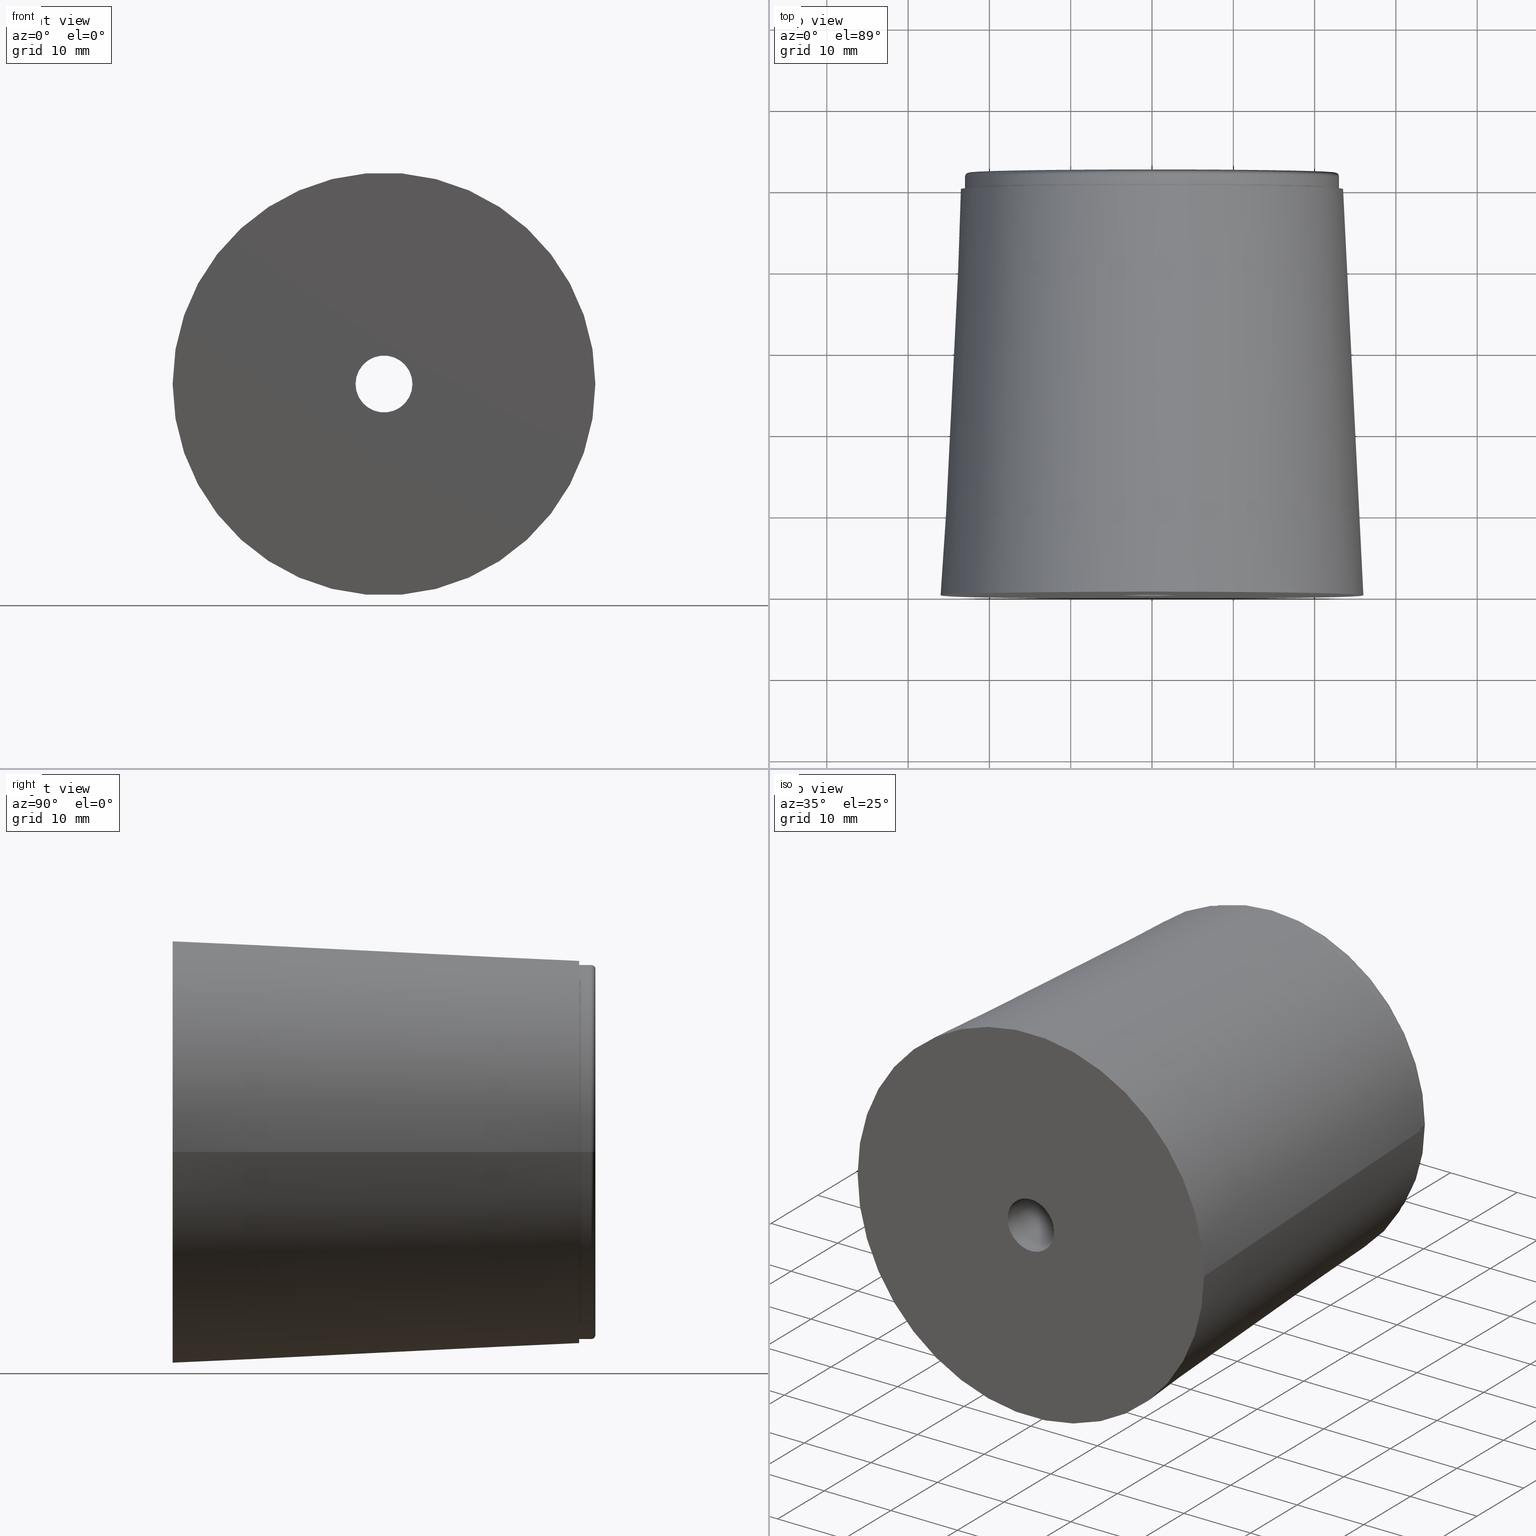
[diagram: canonical four-view strip — front | top / right | iso, engineering-drawing reading convention]
A machine part, canonical four-view strip (front | top / right | iso — engineering-drawing reading convention). The complete STEP part file that produces these views, byte-faithful:
ISO-10303-21;
HEADER;
/* Generated by software containing ST-Developer
 * from STEP Tools, Inc. (www.steptools.com) 
 */

FILE_DESCRIPTION(
/* description */ (''),
/* implementation_level */ '2;1');

FILE_NAME(
/* name */ '\\\\SYNOLOGYNAS\\web\\db2\\PR10-29\\\X2\B3C4BA74\X0\\\DR_P
R10-29.stp',
/* time_stamp */ '2022-10-18T15:19:46+09:00',
/* author */ ('user'),
/* organization */ (''),
/* preprocessor_version */ 'ST-DEVELOPER v15.6',
/* originating_system */ 'Autodesk Inventor 2015',
/* authorisation */ '');

FILE_SCHEMA (('AUTOMOTIVE_DESIGN { 1 0 10303 214 3 1 1 }'));
ENDSEC;

DATA;
#10=MECHANICAL_DESIGN_GEOMETRIC_PRESENTATION_REPRESENTATION('',(#13),#203);
#11=SHAPE_REPRESENTATION_RELATIONSHIP('SRR','None',#212,#12);
#12=ADVANCED_BREP_SHAPE_REPRESENTATION($,(#14),#202);
#13=STYLED_ITEM('',(#221),#14);
#14=MANIFOLD_SOLID_BREP('\X2\C194B9ACB4DC\X0\1',#114);
#15=CONICAL_SURFACE('',#133,26.,2.86240522611175);
#16=PLANE('',#121);
#17=PLANE('',#123);
#18=PLANE('',#129);
#19=PLANE('',#131);
#20=CYLINDRICAL_SURFACE('',#119,23.);
#21=CYLINDRICAL_SURFACE('',#126,8.25);
#22=CYLINDRICAL_SURFACE('',#127,3.5);
#23=FACE_BOUND('',#42,.T.);
#24=FACE_BOUND('',#44,.T.);
#25=FACE_BOUND('',#46,.T.);
#26=FACE_BOUND('',#48,.T.);
#27=FACE_BOUND('',#50,.T.);
#28=FACE_BOUND('',#52,.T.);
#29=FACE_BOUND('',#54,.T.);
#30=FACE_BOUND('',#56,.T.);
#31=FACE_BOUND('',#58,.T.);
#32=FACE_OUTER_BOUND('',#41,.T.);
#33=FACE_OUTER_BOUND('',#43,.T.);
#34=FACE_OUTER_BOUND('',#45,.T.);
#35=FACE_OUTER_BOUND('',#47,.T.);
#36=FACE_OUTER_BOUND('',#49,.T.);
#37=FACE_OUTER_BOUND('',#51,.T.);
#38=FACE_OUTER_BOUND('',#53,.T.);
#39=FACE_OUTER_BOUND('',#55,.T.);
#40=FACE_OUTER_BOUND('',#57,.T.);
#41=EDGE_LOOP('',(#86));
#42=EDGE_LOOP('',(#87));
#43=EDGE_LOOP('',(#88));
#44=EDGE_LOOP('',(#89));
#45=EDGE_LOOP('',(#90));
#46=EDGE_LOOP('',(#91));
#47=EDGE_LOOP('',(#92));
#48=EDGE_LOOP('',(#93));
#49=EDGE_LOOP('',(#94));
#50=EDGE_LOOP('',(#95));
#51=EDGE_LOOP('',(#96));
#52=EDGE_LOOP('',(#97));
#53=EDGE_LOOP('',(#98));
#54=EDGE_LOOP('',(#99));
#55=EDGE_LOOP('',(#100));
#56=EDGE_LOOP('',(#101));
#57=EDGE_LOOP('',(#102));
#58=EDGE_LOOP('',(#103));
#59=CIRCLE('',#117,23.);
#60=CIRCLE('',#118,22.5);
#61=CIRCLE('',#120,23.);
#62=CIRCLE('',#122,8.25);
#63=CIRCLE('',#124,8.25);
#64=CIRCLE('',#125,3.5);
#65=CIRCLE('',#128,3.5);
#66=CIRCLE('',#130,23.5);
#67=CIRCLE('',#132,26.);
#68=VERTEX_POINT('',#174);
#69=VERTEX_POINT('',#176);
#70=VERTEX_POINT('',#179);
#71=VERTEX_POINT('',#182);
#72=VERTEX_POINT('',#185);
#73=VERTEX_POINT('',#187);
#74=VERTEX_POINT('',#191);
#75=VERTEX_POINT('',#194);
#76=VERTEX_POINT('',#197);
#77=EDGE_CURVE('',#68,#68,#59,.T.);
#78=EDGE_CURVE('',#69,#69,#60,.T.);
#79=EDGE_CURVE('',#70,#70,#61,.T.);
#80=EDGE_CURVE('',#71,#71,#62,.T.);
#81=EDGE_CURVE('',#72,#72,#63,.T.);
#82=EDGE_CURVE('',#73,#73,#64,.T.);
#83=EDGE_CURVE('',#74,#74,#65,.T.);
#84=EDGE_CURVE('',#75,#75,#66,.T.);
#85=EDGE_CURVE('',#76,#76,#67,.T.);
#86=ORIENTED_EDGE('',*,*,#77,.T.);
#87=ORIENTED_EDGE('',*,*,#78,.T.);
#88=ORIENTED_EDGE('',*,*,#79,.F.);
#89=ORIENTED_EDGE('',*,*,#77,.F.);
#90=ORIENTED_EDGE('',*,*,#78,.F.);
#91=ORIENTED_EDGE('',*,*,#80,.T.);
#92=ORIENTED_EDGE('',*,*,#81,.T.);
#93=ORIENTED_EDGE('',*,*,#82,.F.);
#94=ORIENTED_EDGE('',*,*,#80,.F.);
#95=ORIENTED_EDGE('',*,*,#81,.F.);
#96=ORIENTED_EDGE('',*,*,#83,.F.);
#97=ORIENTED_EDGE('',*,*,#82,.T.);
#98=ORIENTED_EDGE('',*,*,#84,.F.);
#99=ORIENTED_EDGE('',*,*,#79,.T.);
#100=ORIENTED_EDGE('',*,*,#85,.F.);
#101=ORIENTED_EDGE('',*,*,#83,.T.);
#102=ORIENTED_EDGE('',*,*,#85,.T.);
#103=ORIENTED_EDGE('',*,*,#84,.T.);
#104=TOROIDAL_SURFACE('',#116,22.5,0.5);
#105=ADVANCED_FACE('',(#32,#23),#104,.T.);
#106=ADVANCED_FACE('',(#33,#24),#20,.T.);
#107=ADVANCED_FACE('',(#34,#25),#16,.T.);
#108=ADVANCED_FACE('',(#35,#26),#17,.T.);
#109=ADVANCED_FACE('',(#36,#27),#21,.F.);
#110=ADVANCED_FACE('',(#37,#28),#22,.F.);
#111=ADVANCED_FACE('',(#38,#29),#18,.F.);
#112=ADVANCED_FACE('',(#39,#30),#19,.F.);
#113=ADVANCED_FACE('',(#40,#31),#15,.T.);
#114=CLOSED_SHELL('',(#105,#106,#107,#108,#109,#110,#111,#112,#113));
#115=AXIS2_PLACEMENT_3D('placement',#172,#134,#135);
#116=AXIS2_PLACEMENT_3D('',#173,#136,#137);
#117=AXIS2_PLACEMENT_3D('',#175,#138,#139);
#118=AXIS2_PLACEMENT_3D('',#177,#140,#141);
#119=AXIS2_PLACEMENT_3D('',#178,#142,#143);
#120=AXIS2_PLACEMENT_3D('',#180,#144,#145);
#121=AXIS2_PLACEMENT_3D('',#181,#146,#147);
#122=AXIS2_PLACEMENT_3D('',#183,#148,#149);
#123=AXIS2_PLACEMENT_3D('',#184,#150,#151);
#124=AXIS2_PLACEMENT_3D('',#186,#152,#153);
#125=AXIS2_PLACEMENT_3D('',#188,#154,#155);
#126=AXIS2_PLACEMENT_3D('',#189,#156,#157);
#127=AXIS2_PLACEMENT_3D('',#190,#158,#159);
#128=AXIS2_PLACEMENT_3D('',#192,#160,#161);
#129=AXIS2_PLACEMENT_3D('',#193,#162,#163);
#130=AXIS2_PLACEMENT_3D('',#195,#164,#165);
#131=AXIS2_PLACEMENT_3D('',#196,#166,#167);
#132=AXIS2_PLACEMENT_3D('',#198,#168,#169);
#133=AXIS2_PLACEMENT_3D('',#199,#170,#171);
#134=DIRECTION('axis',(0.,0.,1.));
#135=DIRECTION('refdir',(1.,0.,0.));
#136=DIRECTION('center_axis',(0.,1.,0.));
#137=DIRECTION('ref_axis',(0.,0.,1.));
#138=DIRECTION('center_axis',(0.,1.,0.));
#139=DIRECTION('ref_axis',(-1.,0.,0.));
#140=DIRECTION('center_axis',(0.,-1.,0.));
#141=DIRECTION('ref_axis',(-1.,0.,0.));
#142=DIRECTION('center_axis',(0.,1.,0.));
#143=DIRECTION('ref_axis',(-1.,0.,0.));
#144=DIRECTION('center_axis',(0.,-1.,0.));
#145=DIRECTION('ref_axis',(-1.,0.,0.));
#146=DIRECTION('center_axis',(0.,1.,0.));
#147=DIRECTION('ref_axis',(0.,0.,1.));
#148=DIRECTION('center_axis',(0.,-1.,0.));
#149=DIRECTION('ref_axis',(-1.,0.,0.));
#150=DIRECTION('center_axis',(0.,1.,0.));
#151=DIRECTION('ref_axis',(-1.,0.,0.));
#152=DIRECTION('center_axis',(0.,1.,0.));
#153=DIRECTION('ref_axis',(-1.,0.,0.));
#154=DIRECTION('center_axis',(0.,1.,0.));
#155=DIRECTION('ref_axis',(-1.,0.,0.));
#156=DIRECTION('center_axis',(0.,1.,0.));
#157=DIRECTION('ref_axis',(-1.,0.,0.));
#158=DIRECTION('center_axis',(0.,1.,0.));
#159=DIRECTION('ref_axis',(-1.,0.,0.));
#160=DIRECTION('center_axis',(0.,1.,0.));
#161=DIRECTION('ref_axis',(-1.,0.,0.));
#162=DIRECTION('center_axis',(0.,-1.,0.));
#163=DIRECTION('ref_axis',(0.,0.,-1.));
#164=DIRECTION('center_axis',(0.,-1.,0.));
#165=DIRECTION('ref_axis',(1.,0.,0.));
#166=DIRECTION('center_axis',(0.,1.,0.));
#167=DIRECTION('ref_axis',(0.,0.,1.));
#168=DIRECTION('center_axis',(0.,1.,0.));
#169=DIRECTION('ref_axis',(1.,0.,0.));
#170=DIRECTION('center_axis',(0.,-1.,0.));
#171=DIRECTION('ref_axis',(1.,0.,0.));
#172=CARTESIAN_POINT('',(0.,0.,0.));
#173=CARTESIAN_POINT('Origin',(0.,51.5,0.));
#174=CARTESIAN_POINT('',(23.,51.5,-2.81668763803891E-15));
#175=CARTESIAN_POINT('Origin',(0.,51.5,0.));
#176=CARTESIAN_POINT('',(22.5,52.,2.75545529808155E-15));
#177=CARTESIAN_POINT('Origin',(0.,52.,0.));
#178=CARTESIAN_POINT('Origin',(0.,50.,0.));
#179=CARTESIAN_POINT('',(23.,50.,-2.81668763803891E-15));
#180=CARTESIAN_POINT('Origin',(0.,50.,0.));
#181=CARTESIAN_POINT('Origin',(-8.78331520343913E-16,52.,-3.21803775253669E-16));
#182=CARTESIAN_POINT('',(8.25,52.,-1.01033360929657E-15));
#183=CARTESIAN_POINT('Origin',(0.,52.,0.));
#184=CARTESIAN_POINT('Origin',(0.,33.,0.));
#185=CARTESIAN_POINT('',(-8.25,33.,0.));
#186=CARTESIAN_POINT('Origin',(0.,33.,0.));
#187=CARTESIAN_POINT('',(3.5,33.,-4.28626379701574E-16));
#188=CARTESIAN_POINT('Origin',(0.,33.,0.));
#189=CARTESIAN_POINT('Origin',(0.,41.5,0.));
#190=CARTESIAN_POINT('Origin',(0.,24.,0.));
#191=CARTESIAN_POINT('',(3.5,0.,-4.28626379701574E-16));
#192=CARTESIAN_POINT('Origin',(0.,0.,0.));
#193=CARTESIAN_POINT('Origin',(0.,50.,0.));
#194=CARTESIAN_POINT('',(23.5,50.,0.));
#195=CARTESIAN_POINT('Origin',(0.,50.,0.));
#196=CARTESIAN_POINT('Origin',(0.,0.,0.));
#197=CARTESIAN_POINT('',(26.,0.,0.));
#198=CARTESIAN_POINT('Origin',(0.,0.,0.));
#199=CARTESIAN_POINT('Origin',(0.,0.,0.));
#200=UNCERTAINTY_MEASURE_WITH_UNIT(LENGTH_MEASURE(0.01),#204,
'DISTANCE_ACCURACY_VALUE',
'Maximum model space distance between geometric entities at asserted c
onnectivities');
#201=UNCERTAINTY_MEASURE_WITH_UNIT(LENGTH_MEASURE(1.E-6),#204,
'DISTANCE_ACCURACY_VALUE',
'Maximum model space distance between geometric entities at asserted c
onnectivities');
#202=(
GEOMETRIC_REPRESENTATION_CONTEXT(3)
GLOBAL_UNCERTAINTY_ASSIGNED_CONTEXT((#200))
GLOBAL_UNIT_ASSIGNED_CONTEXT((#204,#207,#205))
REPRESENTATION_CONTEXT('','3D')
);
#203=(
GEOMETRIC_REPRESENTATION_CONTEXT(3)
GLOBAL_UNCERTAINTY_ASSIGNED_CONTEXT((#201))
GLOBAL_UNIT_ASSIGNED_CONTEXT((#204,#207,#205))
REPRESENTATION_CONTEXT('','3D')
);
#204=(
LENGTH_UNIT()
NAMED_UNIT(*)
SI_UNIT(.MILLI.,.METRE.)
);
#205=(
NAMED_UNIT(*)
SI_UNIT($,.STERADIAN.)
SOLID_ANGLE_UNIT()
);
#206=DIMENSIONAL_EXPONENTS(0.,0.,0.,0.,0.,0.,0.);
#207=(
CONVERSION_BASED_UNIT('degree',#209)
NAMED_UNIT(#206)
PLANE_ANGLE_UNIT()
);
#208=(
NAMED_UNIT(*)
PLANE_ANGLE_UNIT()
SI_UNIT($,.RADIAN.)
);
#209=PLANE_ANGLE_MEASURE_WITH_UNIT(PLANE_ANGLE_MEASURE(0.01745329252),#208);
#210=SHAPE_DEFINITION_REPRESENTATION(#211,#212);
#211=PRODUCT_DEFINITION_SHAPE('',$,#214);
#212=SHAPE_REPRESENTATION('',(#115),#202);
#213=PRODUCT_DEFINITION_CONTEXT('part definition',#218,'design');
#214=PRODUCT_DEFINITION('DR_PR10-29','DR_PR10-29',#215,#213);
#215=PRODUCT_DEFINITION_FORMATION('',$,#220);
#216=PRODUCT_RELATED_PRODUCT_CATEGORY('DR_PR10-29','DR_PR10-29',(#220));
#217=APPLICATION_PROTOCOL_DEFINITION('international standard',
'automotive_design',2009,#218);
#218=APPLICATION_CONTEXT(
'Core Data for Automotive Mechanical Design Process');
#219=PRODUCT_CONTEXT('part definition',#218,'mechanical');
#220=PRODUCT('DR_PR10-29','DR_PR10-29',$,(#219));
#221=PRESENTATION_STYLE_ASSIGNMENT((#222));
#222=SURFACE_STYLE_USAGE(.BOTH.,#223);
#223=SURFACE_SIDE_STYLE($,(#224));
#224=SURFACE_STYLE_FILL_AREA(#225);
#225=FILL_AREA_STYLE($,(#226));
#226=FILL_AREA_STYLE_COLOUR($,#227);
#227=COLOUR_RGB('',1.,1.,1.);
ENDSEC;
END-ISO-10303-21;
